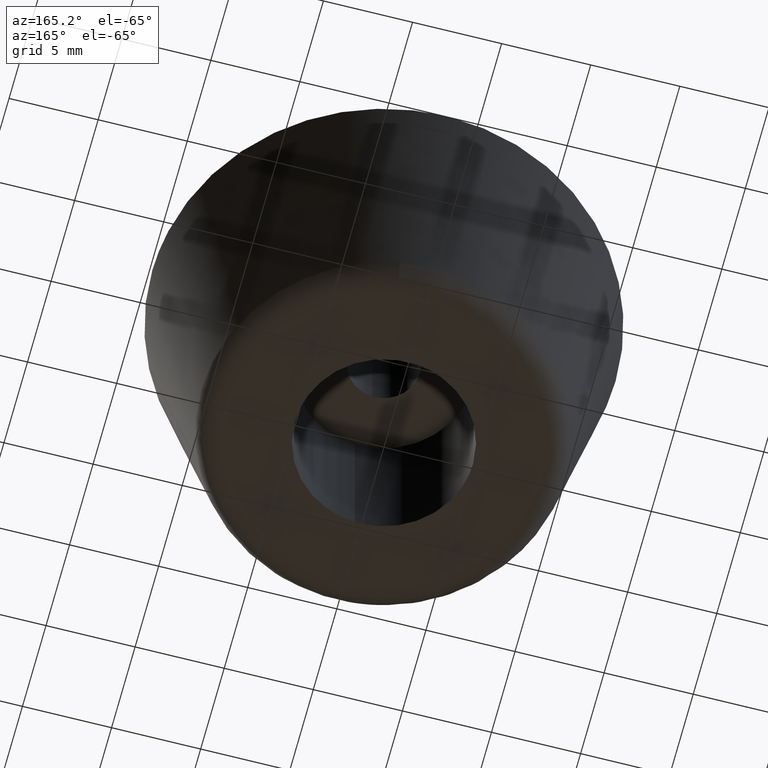
[diagram: clean part render]
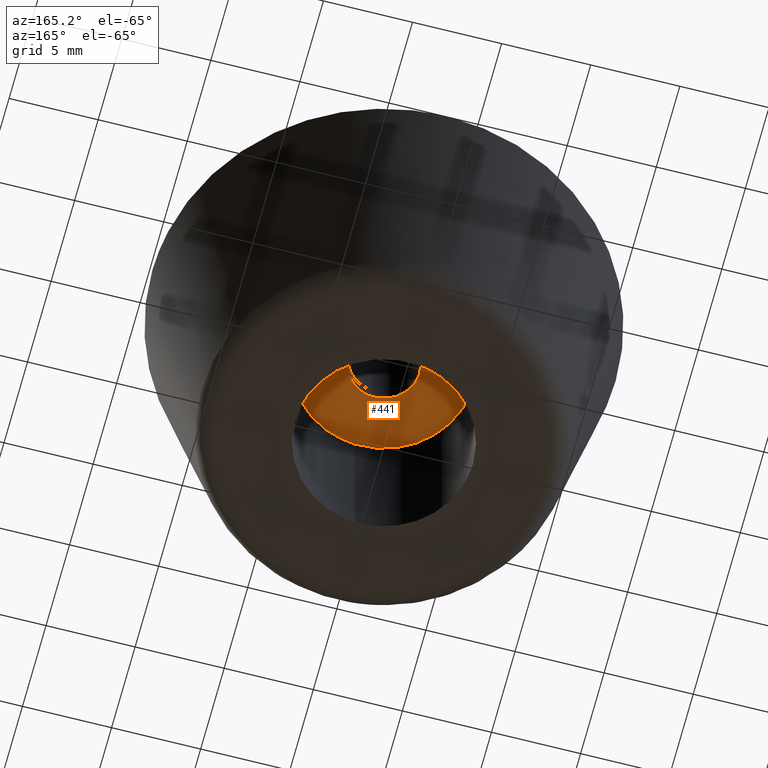
[diagram: same view with one face highlighted and labeled with its STEP entity id]
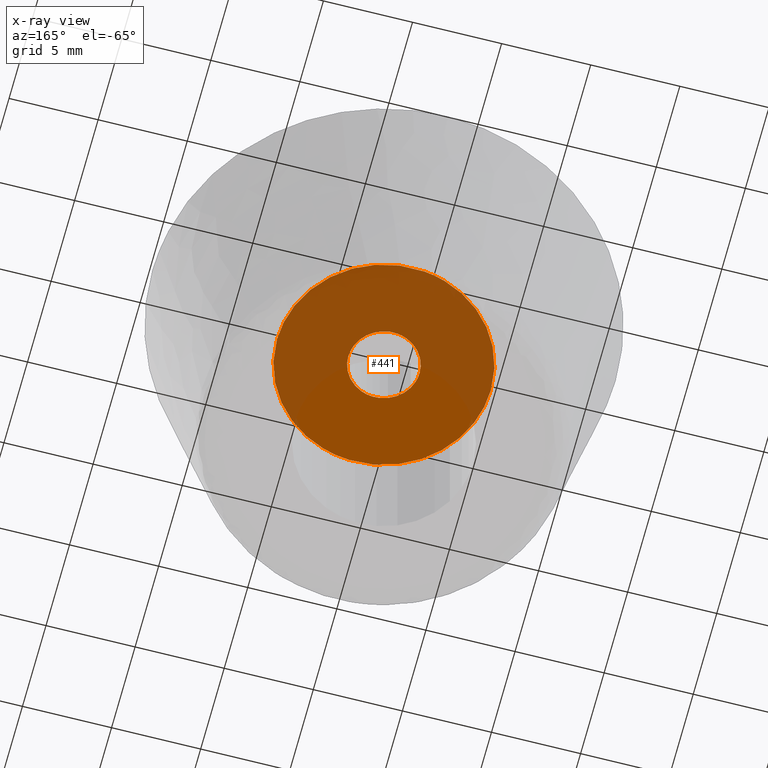
[diagram: x-ray of the same camera — body ghosted, the highlighted face saturated]
A machine part, auxiliary view. The second image highlights one B-rep face of the part: STEP entity #441.
The next image is the same camera in x-ray: the body ghosted, the highlighted face saturated — about 63% of this face is hidden behind the body in this view.
In plain terms, the highlighted face is a freeform B-spline surface patch.
Its self-contained STEP definition (entity closure, byte-faithful):
#66=CARTESIAN_POINT('',(-0.236068469352989,1.986019052722641,10.0));
#67=VERTEX_POINT('',#66);
#68=CARTESIAN_POINT('',(2.0,0.0,10.0));
#69=VERTEX_POINT('',#68);
#70=CARTESIAN_POINT('',(-0.236068469352989,1.986019052722640,10.0));
#71=CARTESIAN_POINT('',(-0.118448239343709,2.0,10.0));
#72=CARTESIAN_POINT('',(0.0,2.0,10.0));
#73=CARTESIAN_POINT('',(2.000000000000000,2.000000000000000,10.000000000000002));
#74=CARTESIAN_POINT('',(2.0,0.0,10.0));
#82=(BOUNDED_CURVE()B_SPLINE_CURVE(2,(#70,#71,#72,#73,#74),.UNSPECIFIED.,.F.,.U.)B_SPLINE_CURVE_WITH_KNOTS((3,2,3),(0.229562473508926,0.250000000000000,0.500000000000000),.UNSPECIFIED.)CURVE()GEOMETRIC_REPRESENTATION_ITEM()RATIONAL_B_SPLINE_CURVE((0.956026754174719,0.976055948325777,1.0,0.707106781186548,1.0))REPRESENTATION_ITEM(''));
#83=EDGE_CURVE('',#67,#69,#82,.T.);
#85=CARTESIAN_POINT('',(0.122097079115449,-1.996269596840936,10.0));
#86=VERTEX_POINT('',#85);
#87=CARTESIAN_POINT('',(2.0,0.0,10.0));
#88=CARTESIAN_POINT('',(1.999999999999999,-1.881412133725024,10.0));
#89=CARTESIAN_POINT('',(0.122097079115448,-1.996269596840936,10.0));
#97=(BOUNDED_CURVE()B_SPLINE_CURVE(2,(#87,#88,#89),.UNSPECIFIED.,.F.,.U.)B_SPLINE_CURVE_WITH_KNOTS((3,3),(0.500000000000000,0.739332962234062),.UNSPECIFIED.)CURVE()GEOMETRIC_REPRESENTATION_ITEM()RATIONAL_B_SPLINE_CURVE((1.0,0.719603993292428,0.976072041656258))REPRESENTATION_ITEM(''));
#98=EDGE_CURVE('',#69,#86,#97,.T.);
#165=CARTESIAN_POINT('',(-2.0,0.0,10.0));
#166=VERTEX_POINT('',#165);
#167=CARTESIAN_POINT('',(-2.0,0.0,10.0));
#168=CARTESIAN_POINT('',(-2.000000000000000,1.776349051831628,9.999999999999998));
#169=CARTESIAN_POINT('',(-0.236068469352989,1.986019052722640,10.0));
#177=(BOUNDED_CURVE()B_SPLINE_CURVE(2,(#167,#168,#169),.UNSPECIFIED.,.F.,.U.)B_SPLINE_CURVE_WITH_KNOTS((3,3),(0.0,0.229562473508926),.UNSPECIFIED.)CURVE()GEOMETRIC_REPRESENTATION_ITEM()RATIONAL_B_SPLINE_CURVE((1.0,0.731050832860771,0.956026754174719))REPRESENTATION_ITEM(''));
#178=EDGE_CURVE('',#166,#67,#177,.T.);
#212=CARTESIAN_POINT('',(0.122097079115449,-1.996269596840937,10.0));
#213=CARTESIAN_POINT('',(0.061105526643041,-2.000000000000000,10.0));
#214=CARTESIAN_POINT('',(0.0,-2.0,10.0));
#215=CARTESIAN_POINT('',(-2.000000000000000,-2.000000000000000,10.000000000000002));
#216=CARTESIAN_POINT('',(-2.0,0.0,10.0));
#224=(BOUNDED_CURVE()B_SPLINE_CURVE(2,(#212,#213,#214,#215,#216),.UNSPECIFIED.,.F.,.U.)B_SPLINE_CURVE_WITH_KNOTS((3,2,3),(0.739332962234062,0.750000000000000,1.0),.UNSPECIFIED.)CURVE()GEOMETRIC_REPRESENTATION_ITEM()RATIONAL_B_SPLINE_CURVE((0.976072041656257,0.987502787894119,1.0,0.707106781186548,1.0))REPRESENTATION_ITEM(''));
#225=EDGE_CURVE('',#86,#166,#224,.T.);
#256=CARTESIAN_POINT('',(-0.708196321017467,5.958058238286496,10.0));
#257=VERTEX_POINT('',#256);
#258=CARTESIAN_POINT('',(6.0,0.0,10.0));
#259=VERTEX_POINT('',#258);
#260=CARTESIAN_POINT('',(-0.708196321017467,5.958058238286496,10.000000000000002));
#261=CARTESIAN_POINT('',(-0.355340126418063,6.0,9.999999999999998));
#262=CARTESIAN_POINT('',(0.0,6.0,10.0));
#263=CARTESIAN_POINT('',(6.0,6.0,10.000000000000002));
#264=CARTESIAN_POINT('',(6.0,0.0,10.0));
#272=(BOUNDED_CURVE()B_SPLINE_CURVE(2,(#260,#261,#262,#263,#264),.UNSPECIFIED.,.F.,.U.)B_SPLINE_CURVE_WITH_KNOTS((3,2,3),(0.229562731270752,0.250000000000000,0.500000000000000),.UNSPECIFIED.)CURVE()GEOMETRIC_REPRESENTATION_ITEM()RATIONAL_B_SPLINE_CURVE((0.956027259399068,0.976056250312540,1.0,0.707106781186548,1.0))REPRESENTATION_ITEM(''));
#273=EDGE_CURVE('',#257,#259,#272,.T.);
#314=CARTESIAN_POINT('',(0.366281832401029,-5.988809365739083,9.999999999999847));
#315=VERTEX_POINT('',#314);
#321=CARTESIAN_POINT('',(6.0,0.0,10.0));
#322=CARTESIAN_POINT('',(6.0,-5.644245281695966,10.0));
#323=CARTESIAN_POINT('',(0.366281832401029,-5.988809365739083,9.999999999999847));
#331=(BOUNDED_CURVE()B_SPLINE_CURVE(2,(#321,#322,#323),.UNSPECIFIED.,.F.,.U.)B_SPLINE_CURVE_WITH_KNOTS((3,3),(0.500000000000000,0.739333233209006),.UNSPECIFIED.)CURVE()GEOMETRIC_REPRESENTATION_ITEM()RATIONAL_B_SPLINE_CURVE((1.0,0.719603675825535,0.976072622407832))REPRESENTATION_ITEM(''));
#332=EDGE_CURVE('',#259,#315,#331,.T.);
#359=CARTESIAN_POINT('',(-6.0,0.0,10.0));
#360=VERTEX_POINT('',#359);
#361=CARTESIAN_POINT('',(-6.0,0.0,10.0));
#362=CARTESIAN_POINT('',(-5.999999999999999,5.329055340517229,10.0));
#363=CARTESIAN_POINT('',(-0.708196321017467,5.958058238286496,10.000000000000002));
#371=(BOUNDED_CURVE()B_SPLINE_CURVE(2,(#361,#362,#363),.UNSPECIFIED.,.F.,.U.)B_SPLINE_CURVE_WITH_KNOTS((3,3),(0.0,0.229562731270752),.UNSPECIFIED.)CURVE()GEOMETRIC_REPRESENTATION_ITEM()RATIONAL_B_SPLINE_CURVE((1.0,0.731050530874008,0.956027259399068))REPRESENTATION_ITEM(''));
#372=EDGE_CURVE('',#360,#257,#371,.T.);
#374=CARTESIAN_POINT('',(0.366281832401029,-5.988809365739083,9.999999999999847));
#375=CARTESIAN_POINT('',(0.183311864202960,-6.0,9.999999999999998));
#376=CARTESIAN_POINT('',(0.0,-6.0,10.0));
#377=CARTESIAN_POINT('',(-6.0,-6.0,10.000000000000002));
#378=CARTESIAN_POINT('',(-6.0,0.0,10.0));
#386=(BOUNDED_CURVE()B_SPLINE_CURVE(2,(#374,#375,#376,#377,#378),.UNSPECIFIED.,.F.,.U.)B_SPLINE_CURVE_WITH_KNOTS((3,2,3),(0.739333233209006,0.750000000000000,1.0),.UNSPECIFIED.)CURVE()GEOMETRIC_REPRESENTATION_ITEM()RATIONAL_B_SPLINE_CURVE((0.976072622407832,0.987503105361013,1.0,0.707106781186548,1.0))REPRESENTATION_ITEM(''));
#387=EDGE_CURVE('',#315,#360,#386,.T.);
#424=CARTESIAN_POINT('',(6.599399976741671,-6.599254392664426,10.0));
#425=CARTESIAN_POINT('',(-6.599400298606753,-6.599254392664426,10.0));
#426=CARTESIAN_POINT('',(6.599399976741671,6.599290870707029,10.0));
#427=CARTESIAN_POINT('',(-6.599400298606753,6.599290870707029,10.0));
#428=B_SPLINE_SURFACE_WITH_KNOTS('',1,1,((#424,#426),(#425,#427)),.UNSPECIFIED.,.F.,.F.,.U.,(2,2),(2,2),(0.0,13.198800275348420),(0.0,13.198545263371450),.UNSPECIFIED.);
#429=ORIENTED_EDGE('',*,*,#372,.T.);
#430=ORIENTED_EDGE('',*,*,#273,.T.);
#431=ORIENTED_EDGE('',*,*,#332,.T.);
#432=ORIENTED_EDGE('',*,*,#387,.T.);
#433=EDGE_LOOP('',(#429,#430,#431,#432));
#434=FACE_OUTER_BOUND('',#433,.T.);
#435=ORIENTED_EDGE('',*,*,#98,.F.);
#436=ORIENTED_EDGE('',*,*,#83,.F.);
#437=ORIENTED_EDGE('',*,*,#178,.F.);
#438=ORIENTED_EDGE('',*,*,#225,.F.);
#439=EDGE_LOOP('',(#435,#436,#437,#438));
#440=FACE_BOUND('',#439,.T.);
#441=ADVANCED_FACE('',(#434,#440),#428,.T.);